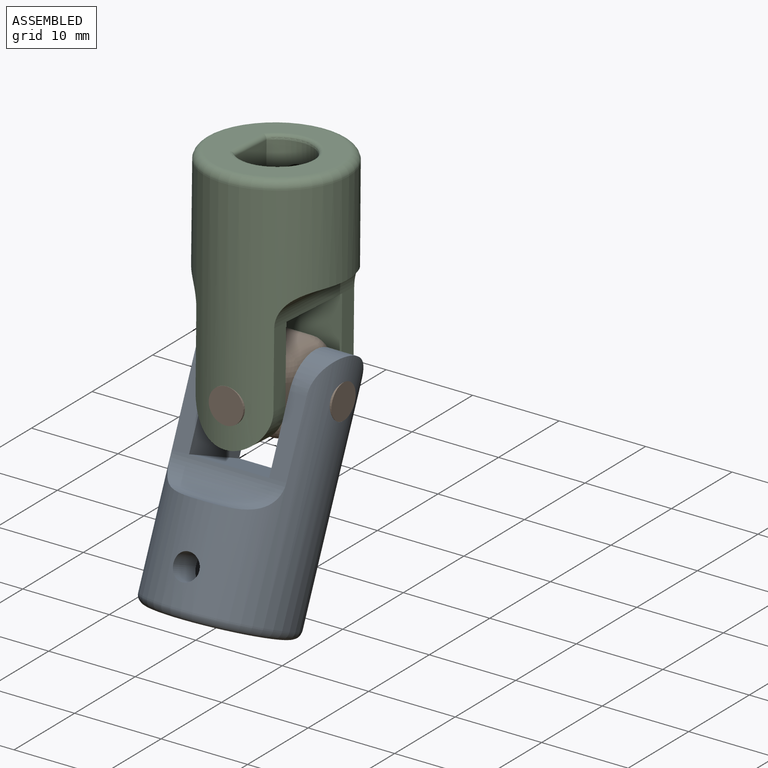
[diagram: assembled view]
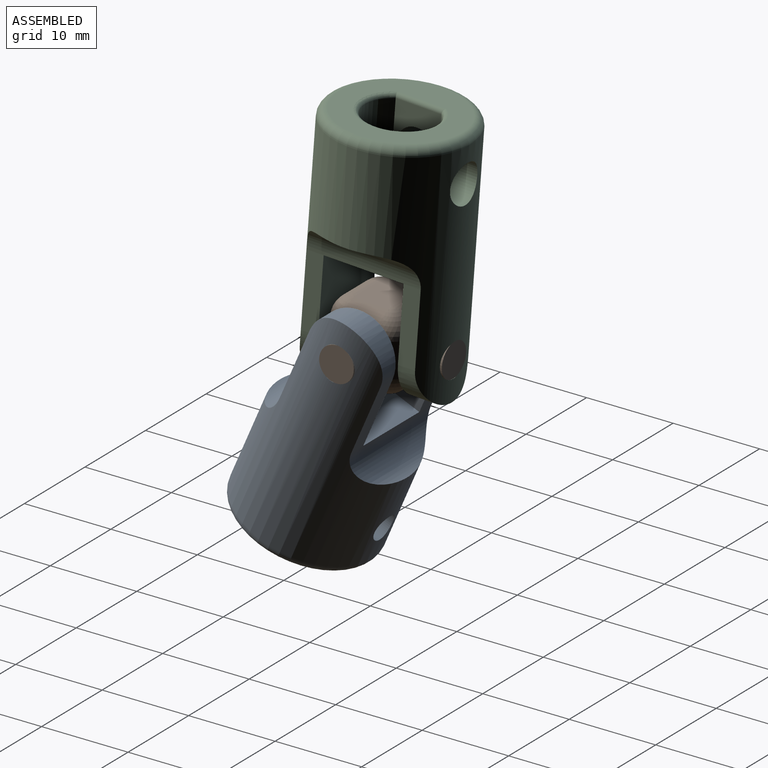
[diagram: assembled view, second angle]
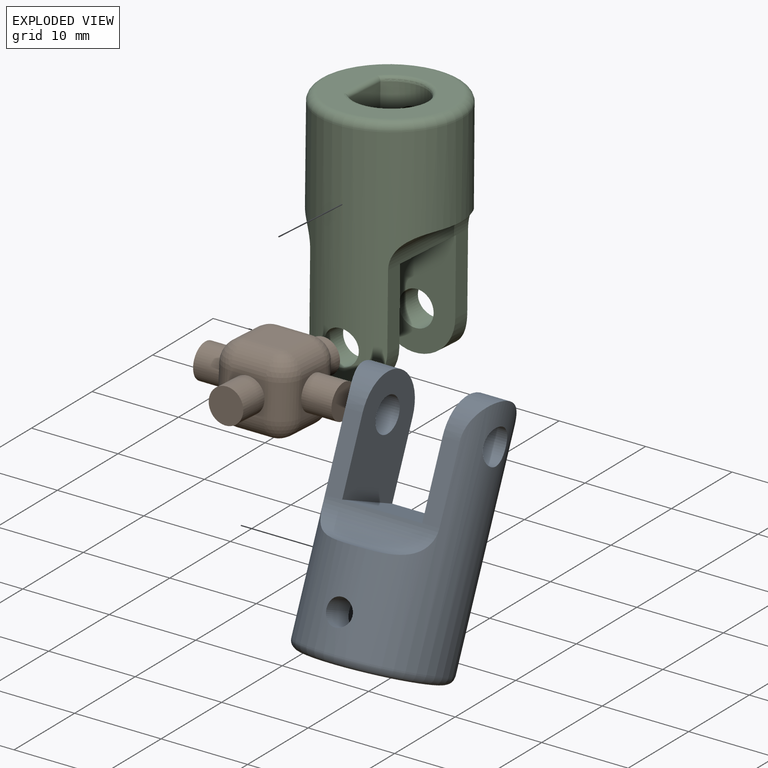
[diagram: exploded view]
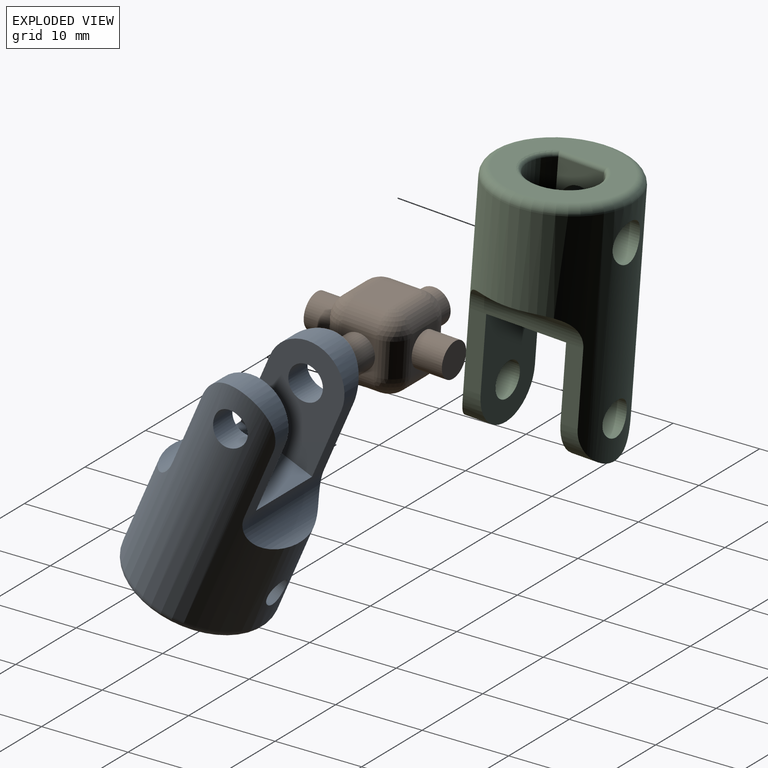
[diagram: exploded view, second angle]
ASSEMBLY  parts=3 mates=2
PART A: 37 faces, bbox 17.3x17.3x28 mm
  f0: plane 14x14mm, normal (0,0,-1), area 83.8mm2, adj f28,f29,f30,f31,f32,f33,f34
  f1: cylinder r=8mm len=27mm, axis (0,0,-1), area 798.5mm2, adj f5,f6,f7,f8,f9,f10,f11,f12
  f2: plane 13x9mm, normal (-1,0,0), area 95.7mm2, adj f4,f7,f10,f11,f13
  f3: plane 13x9mm, normal (1,0,0), area 95.7mm2, adj f4,f5,f6,f9,f12
  f4: plane 9.25x9mm, normal (0,0,1), area 83.2mm2, adj f2,f3,f8,f14
  f5: cylinder r=2mm len=4mm, axis (1,0,0), area 40.8mm2, adj f1,f3
  f6: cylinder r=4.5mm len=9mm, axis (1,0,0), area 38.2mm2, adj f1,f3,f9,f12
  f7: cylinder r=4.5mm len=9mm, axis (1,0,0), area 38.2mm2, adj f1,f2,f10,f13
  f8: cylinder r=3.5mm len=13.23mm, axis (1,0,0), area 57.5mm2, adj f1,f4,f9,f10
  f9: plane 8.5x1.99mm, normal (0,-1,0), area 16.9mm2, adj f1,f3,f6,f8
  f10: plane 8.5x1.99mm, normal (0,-1,0), area 16.9mm2, adj f1,f2,f7,f8
  f11: cylinder r=2mm len=4mm, axis (1,0,0), area 40.8mm2, adj f1,f2
  f12: plane 8.5x1.99mm, normal (0,1,0), area 16.9mm2, adj f1,f3,f6,f14
  f13: plane 8.5x1.99mm, normal (0,1,0), area 16.9mm2, adj f1,f2,f7,f14
  f14: cylinder r=3.5mm len=13.23mm, axis (1,0,0), area 57.5mm2, adj f1,f4,f12,f13
  f15: plane 10.5x4mm, normal (-0.5,0.87,0), area 44.4mm2, adj f16,f20,f23,f30,f36
  f16: plane 10.5x4mm, normal (0.5,0.87,0), area 44.4mm2, adj f15,f17,f22,f29,f36
  f17: plane 10.5x4.62mm, normal (1,0,0), area 48.5mm2, adj f16,f18,f24,f31
  f18: plane 10.5x4mm, normal (0.5,-0.87,0), area 44.4mm2, adj f17,f19,f26,f33,f35
  f19: plane 10.5x4mm, normal (-0.5,-0.87,0), area 44.4mm2, adj f18,f20,f27,f34,f35
  f20: plane 10.5x4.62mm, normal (-1,0,0), area 48.5mm2, adj f15,f19,f25,f32
  f21: plane 6.93x6mm, normal (0,0,-1), area 31.2mm2, adj f22,f23,f24,f25,f26,f27
  f22: cylinder r=1mm len=4.5mm, axis (-0.87,0.5,0), area 6.6mm2, adj f16,f21,f23,f24
  f23: cylinder r=1mm len=4.5mm, axis (-0.87,-0.5,0), area 6.6mm2, adj f15,f21,f22,f25
  f24: cylinder r=1mm len=4.62mm, axis (0,1,0), area 6.6mm2, adj f17,f21,f22,f26
  f25: cylinder r=1mm len=4.62mm, axis (0,-1,0), area 6.6mm2, adj f20,f21,f23,f27
  f26: cylinder r=1mm len=4.5mm, axis (0.87,0.5,0), area 6.6mm2, adj f18,f21,f24,f27
  f27: cylinder r=1mm len=4.5mm, axis (0.87,-0.5,0), area 6.6mm2, adj f19,f21,f25,f26
  f28: torus R=7mm, axis (0,0,1), area 75.4mm2, adj f0,f1
  f29: cylinder r=0.5mm len=4.75mm, axis (-0.87,0.5,0), area 3.8mm2, adj f0,f16,f30,f31
  f30: cylinder r=0.5mm len=4.75mm, axis (-0.87,-0.5,0), area 3.8mm2, adj f0,f15,f29,f32
  f31: cylinder r=0.5mm len=5.2mm, axis (0,1,0), area 3.8mm2, adj f0,f17,f29,f33
  f32: cylinder r=0.5mm len=5.2mm, axis (0,-1,0), area 3.8mm2, adj f0,f20,f30,f34
  f33: cylinder r=0.5mm len=4.75mm, axis (0.87,0.5,0), area 3.8mm2, adj f0,f18,f31,f34
  f34: cylinder r=0.5mm len=4.75mm, axis (0.87,-0.5,0), area 3.8mm2, adj f0,f19,f32,f33
  f35: cylinder r=1.5mm len=4.25mm, axis (0,-1,0), area 36.4mm2, adj f1,f18,f19
  f36: cylinder r=1.5mm len=4.25mm, axis (0,-1,0), area 36.4mm2, adj f1,f15,f16
PART B: 46 faces, bbox 16x16x9 mm
  f0: plane 2x2mm, normal (0,1,0), area 0.9mm2, adj f31,f37,f44
  f1: plane 2x2mm, normal (0,1,0), area 0.9mm2, adj f34,f37,f44
  f2: plane 2x2mm, normal (0,1,0), area 0.9mm2, adj f26,f34,f44
  f3: plane 2x2mm, normal (0,-1,0), area 0.9mm2, adj f22,f23,f43
  f4: plane 2x2mm, normal (0,-1,0), area 0.9mm2, adj f23,f24,f43
  f5: plane 2x2mm, normal (0,-1,0), area 0.9mm2, adj f18,f24,f43
  f6: plane 2x2mm, normal (-1,0,0), area 0.9mm2, adj f23,f33,f40
  f7: plane 2x2mm, normal (-1,0,0), area 0.9mm2, adj f23,f32,f40
  f8: plane 2x2mm, normal (-1,0,0), area 0.9mm2, adj f32,f37,f40
  f9: plane 2x2mm, normal (1,0,0), area 0.9mm2, adj f18,f25,f39
  f10: plane 2x2mm, normal (1,0,0), area 0.9mm2, adj f18,f21,f39
  f11: plane 2x2mm, normal (1,0,0), area 0.9mm2, adj f21,f26,f39
  f12: plane 2x2mm, normal (0,1,0), area 0.9mm2, adj f26,f31,f44
  f13: plane 2x2mm, normal (-1,0,0), area 0.9mm2, adj f33,f37,f40
  f14: plane 2x2mm, normal (0,-1,0), area 0.9mm2, adj f18,f22,f43
  f15: plane 2x2mm, normal (1,0,0), area 0.9mm2, adj f25,f26,f39
  f16: plane 4x4mm, normal (0,0,1), area 16mm2, adj f21,f22,f31,f32
  f17: plane 4x4mm, normal (0,0,-1), area 16mm2, adj f24,f25,f33,f34
  f18: cylinder r=2.5mm len=4mm, axis (0,0,1), area 15.7mm2, adj f5,f9,f10,f14,f19,f20
  f19: sphere r=2.5mm, area 9.8mm2, adj f18,f21,f22
  f20: sphere r=2.5mm, area 9.8mm2, adj f18,f24,f25
  f21: cylinder r=2.5mm len=4mm, axis (0,-1,0), area 15.7mm2, adj f10,f11,f16,f19,f27
  f22: cylinder r=2.5mm len=4mm, axis (-1,0,0), area 15.7mm2, adj f3,f14,f16,f19,f28
  f23: cylinder r=2.5mm len=4mm, axis (0,0,-1), area 15.7mm2, adj f3,f4,f6,f7,f28,f29
  f24: cylinder r=2.5mm len=4mm, axis (1,0,0), area 15.7mm2, adj f4,f5,f17,f20,f29
  f25: cylinder r=2.5mm len=4mm, axis (0,1,0), area 15.7mm2, adj f9,f15,f17,f20,f30
  f26: cylinder r=2.5mm len=4mm, axis (0,0,-1), area 15.7mm2, adj f2,f11,f12,f15,f27,f30
  f27: sphere r=2.5mm, area 9.8mm2, adj f21,f26,f31
  f28: sphere r=2.5mm, area 9.8mm2, adj f22,f23,f32
  f29: sphere r=2.5mm, area 9.8mm2, adj f23,f24,f33
  f30: sphere r=2.5mm, area 9.8mm2, adj f25,f26,f34
  f31: cylinder r=2.5mm len=4mm, axis (1,0,0), area 15.7mm2, adj f0,f12,f16,f27,f35
  f32: cylinder r=2.5mm len=4mm, axis (0,1,0), area 15.7mm2, adj f7,f8,f16,f28,f35
  f33: cylinder r=2.5mm len=4mm, axis (0,-1,0), area 15.7mm2, adj f6,f13,f17,f29,f36
  f34: cylinder r=2.5mm len=4mm, axis (-1,0,0), area 15.7mm2, adj f1,f2,f17,f30,f36
  f35: sphere r=2.5mm, area 9.8mm2, adj f31,f32,f37
  f36: sphere r=2.5mm, area 9.8mm2, adj f33,f34,f37
  f37: cylinder r=2.5mm len=4mm, axis (0,0,1), area 15.7mm2, adj f0,f1,f8,f13,f35,f36
  f38: plane 4x4mm, normal (1,0,0), area 12.6mm2, adj f39
  f39: cylinder r=2mm len=4mm, axis (-1,0,0), area 44mm2, adj f9,f10,f11,f15,f38
  f40: cylinder r=2mm len=4mm, axis (-1,0,0), area 44mm2, adj f6,f7,f8,f13,f41
  f41: plane 4x4mm, normal (-1,0,0), area 12.6mm2, adj f40
  f42: plane 4x4mm, normal (0,-1,0), area 12.6mm2, adj f43
  f43: cylinder r=2mm len=4mm, axis (0,1,0), area 44mm2, adj f3,f4,f5,f14,f42
  f44: cylinder r=2mm len=4mm, axis (0,1,0), area 44mm2, adj f0,f1,f2,f12,f45
  f45: plane 4x4mm, normal (0,1,0), area 12.6mm2, adj f44
PART C: 25 faces, bbox 17.3x17.3x28 mm
  f0: cylinder r=8mm len=27mm, axis (0,0,-1), area 780.7mm2, adj f6,f7,f8,f9,f10,f11,f12,f13
  f1: cylinder r=4mm len=11mm, axis (0,0,-1), area 196.2mm2, adj f16,f20,f22,f24
  f2: plane 13x9mm, normal (-1,0,0), area 95.7mm2, adj f4,f8,f11,f12,f14
  f3: plane 13x9mm, normal (1,0,0), area 95.7mm2, adj f4,f6,f7,f10,f13
  f4: plane 9.25x9mm, normal (0,0,1), area 83.2mm2, adj f2,f3,f9,f15
  f5: plane 14x14mm, normal (0,0,-1), area 94.2mm2, adj f18,f21,f22
  f6: cylinder r=2mm len=4mm, axis (1,0,0), area 40.8mm2, adj f0,f3
  f7: cylinder r=4.5mm len=9mm, axis (1,0,0), area 38.2mm2, adj f0,f3,f10,f13
  f8: cylinder r=4.5mm len=9mm, axis (1,0,0), area 38.2mm2, adj f0,f2,f11,f14
  f9: cylinder r=3.5mm len=13.23mm, axis (1,0,0), area 57.5mm2, adj f0,f4,f10,f11
  f10: plane 8.5x1.99mm, normal (0,-1,0), area 16.9mm2, adj f0,f3,f7,f9
  f11: plane 8.5x1.99mm, normal (0,-1,0), area 16.9mm2, adj f0,f2,f8,f9
  f12: cylinder r=2mm len=4mm, axis (1,0,0), area 40.8mm2, adj f0,f2
  f13: plane 8.5x1.99mm, normal (0,1,0), area 16.9mm2, adj f0,f3,f7,f15
  f14: plane 8.5x1.99mm, normal (0,1,0), area 16.9mm2, adj f0,f2,f8,f15
  f15: cylinder r=3.5mm len=13.23mm, axis (1,0,0), area 57.5mm2, adj f0,f4,f13,f14
  f16: plane 11x5.29mm, normal (0,1,0), area 42.3mm2, adj f1,f19,f21,f23
  f17: plane 7x6mm, normal (0,0,-1), area 35.1mm2, adj f23,f24
  f18: torus R=7mm, axis (0,0,1), area 75.4mm2, adj f0,f5
  f19: cylinder r=2.25mm len=5mm, axis (0,1,0), area 68.4mm2, adj f0,f16
  f20: cylinder r=2.25mm len=4.69mm, axis (-1,0,0), area 59.1mm2, adj f0,f1
  f21: cylinder r=0.5mm len=5.66mm, axis (-1,0,0), area 4.3mm2, adj f5,f16,f22
  f22: torus R=4.5mm, axis (0,0,1), area 16mm2, adj f1,f5,f21
  f23: cylinder r=0.5mm len=5.29mm, axis (-1,0,0), area 4mm2, adj f16,f17,f24
  f24: torus R=3.5mm, axis (0,0,-1), area 14.4mm2, adj f1,f17,f23
PLACE A rot(axis=(-1,0,0),23.4deg) t=(-26.08,8.08,7.2)mm
PLACE B rot(axis=(1,0,0),176.8deg) t=(-26.1,17.42,28.76)mm fixed
PLACE C rot(axis=(0.71,0.71,-0.01),176.5deg) t=(-26.79,18.77,52.21)mm
MATE revolute B.f39 <-> A.f5  axis (-1,0,0) through (-34.1,17.42,28.76)mm
MATE revolute B.f43 <-> C.f6  axis (0,-1,0.06) through (-26.1,9.43,29.21)mm
